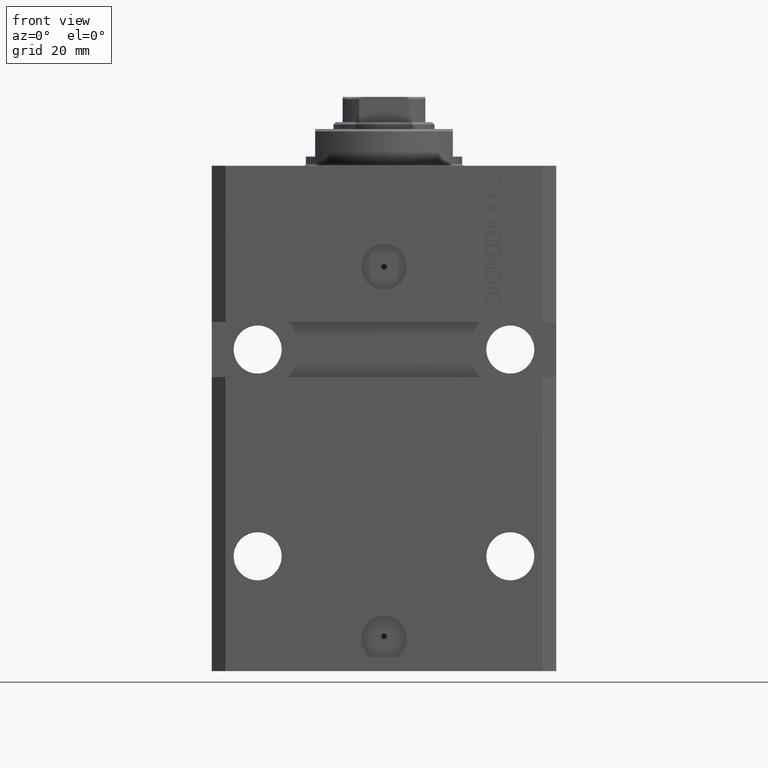
[diagram: clean part render]
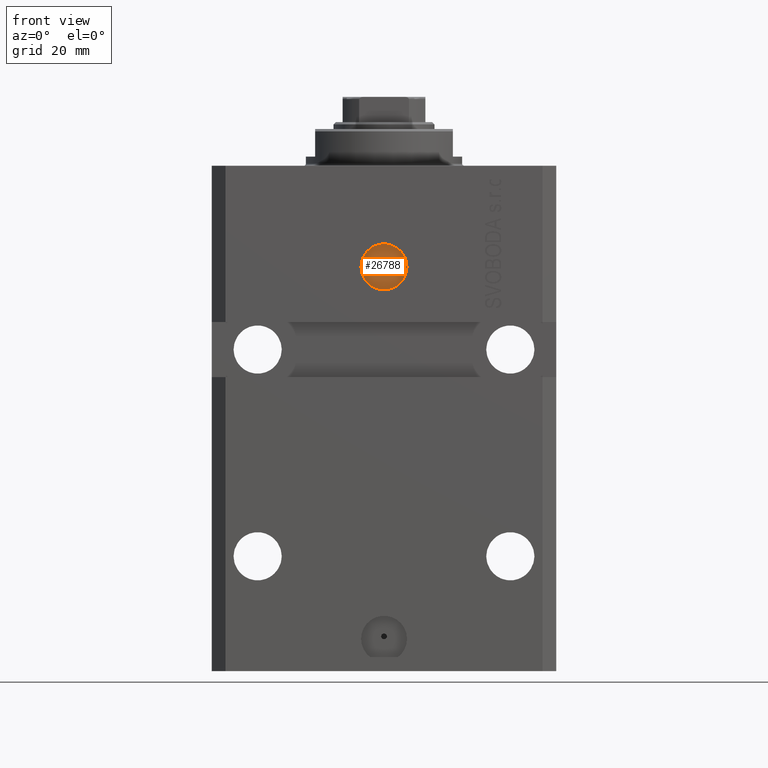
[diagram: same view with one face highlighted and labeled with its STEP entity id]
A machine part, front view. The second image highlights one B-rep face of the part: STEP entity #26788.
In plain terms, the highlighted planar face has unit normal (0, -1, 0).
Its self-contained STEP definition (entity closure, byte-faithful):
#369 = CARTESIAN_POINT ( 'NONE',  ( 3.010774304068577164E-15, -25.59999999999999787, -22.00000000000000000 ) ) ;
#3553 = EDGE_CURVE ( 'NONE', #28765, #43482, #19916, .T. ) ;
#3999 = DIRECTION ( 'NONE',  ( 1.000000000000000000, 0.000000000000000000, 0.000000000000000000 ) ) ;
#8051 = CARTESIAN_POINT ( 'NONE',  ( 0.6250000000000032196, -25.59999999999999787, -22.00000000000000000 ) ) ;
#8710 = FACE_OUTER_BOUND ( 'NONE', #24822, .T. ) ;
#11426 = AXIS2_PLACEMENT_3D ( 'NONE', #47715, #40457, #40218 ) ;
#12293 = EDGE_CURVE ( 'NONE', #45639, #37656, #24760, .T. ) ;
#12686 = CARTESIAN_POINT ( 'NONE',  ( -2.234559053800897838E-16, -25.59999999999999787, -22.00000000000000000 ) ) ;
#15481 = EDGE_LOOP ( 'NONE', ( #46498, #46465 ) ) ;
#16494 = AXIS2_PLACEMENT_3D ( 'NONE', #34179, #26405, #26880 ) ;
#18982 = ORIENTED_EDGE ( 'NONE', *, *, #3553, .T. ) ;
#19569 = ORIENTED_EDGE ( 'NONE', *, *, #27562, .T. ) ;
#19916 = CIRCLE ( 'NONE', #11426, 5.000000000000002665 ) ;
#22497 = CARTESIAN_POINT ( 'NONE',  ( 3.010774304068577164E-15, -25.59999999999999787, -22.00000000000000000 ) ) ;
#23371 = CARTESIAN_POINT ( 'NONE',  ( -0.6249999999999972244, -25.59999999999999787, -22.00000000000000000 ) ) ;
#23474 = FACE_BOUND ( 'NONE', #15481, .T. ) ;
#23479 = CIRCLE ( 'NONE', #30463, 5.000000000000002665 ) ;
#23584 = DIRECTION ( 'NONE',  ( 1.176083712526788232E-16, -1.000000000000000000, 0.000000000000000000 ) ) ;
#24760 = CIRCLE ( 'NONE', #46445, 0.6250000000000002220 ) ;
#24822 = EDGE_LOOP ( 'NONE', ( #19569, #18982 ) ) ;
#26405 = DIRECTION ( 'NONE',  ( 1.176083712526788232E-16, -1.000000000000000000, 0.000000000000000000 ) ) ;
#26788 = ADVANCED_FACE ( 'NONE', ( #23474, #8710 ), #37561, .T. ) ;
#26880 = DIRECTION ( 'NONE',  ( 1.000000000000000000, 1.176083712526788232E-16, 0.000000000000000000 ) ) ;
#27562 = EDGE_CURVE ( 'NONE', #43482, #28765, #23479, .T. ) ;
#28765 = VERTEX_POINT ( 'NONE', #30845 ) ;
#30463 = AXIS2_PLACEMENT_3D ( 'NONE', #12686, #23584, #38385 ) ;
#30845 = CARTESIAN_POINT ( 'NONE',  ( -5.000000000000002665, -25.59999999999999787, -22.00000000000000000 ) ) ;
#32274 = CIRCLE ( 'NONE', #38446, 0.6250000000000002220 ) ;
#33673 = DIRECTION ( 'NONE',  ( 1.176083712526788232E-16, -1.000000000000000000, 0.000000000000000000 ) ) ;
#34179 = CARTESIAN_POINT ( 'NONE',  ( -2.234559053800897838E-16, -25.59999999999999787, -22.00000000000000000 ) ) ;
#35927 = CARTESIAN_POINT ( 'NONE',  ( 5.000000000000002665, -25.59999999999999787, -22.00000000000000000 ) ) ;
#37561 = PLANE ( 'NONE',  #16494 ) ;
#37656 = VERTEX_POINT ( 'NONE', #23371 ) ;
#38385 = DIRECTION ( 'NONE',  ( 1.000000000000000000, 0.000000000000000000, 0.000000000000000000 ) ) ;
#38446 = AXIS2_PLACEMENT_3D ( 'NONE', #369, #40104, #3999 ) ;
#40104 = DIRECTION ( 'NONE',  ( 1.176083712526788232E-16, -1.000000000000000000, 0.000000000000000000 ) ) ;
#40218 = DIRECTION ( 'NONE',  ( 1.000000000000000000, 0.000000000000000000, 0.000000000000000000 ) ) ;
#40457 = DIRECTION ( 'NONE',  ( 1.176083712526788232E-16, -1.000000000000000000, 0.000000000000000000 ) ) ;
#41412 = DIRECTION ( 'NONE',  ( 1.000000000000000000, 0.000000000000000000, 0.000000000000000000 ) ) ;
#43482 = VERTEX_POINT ( 'NONE', #35927 ) ;
#44160 = EDGE_CURVE ( 'NONE', #37656, #45639, #32274, .T. ) ;
#45639 = VERTEX_POINT ( 'NONE', #8051 ) ;
#46445 = AXIS2_PLACEMENT_3D ( 'NONE', #22497, #33673, #41412 ) ;
#46465 = ORIENTED_EDGE ( 'NONE', *, *, #44160, .F. ) ;
#46498 = ORIENTED_EDGE ( 'NONE', *, *, #12293, .F. ) ;
#47715 = CARTESIAN_POINT ( 'NONE',  ( -2.234559053800897838E-16, -25.59999999999999787, -22.00000000000000000 ) ) ;